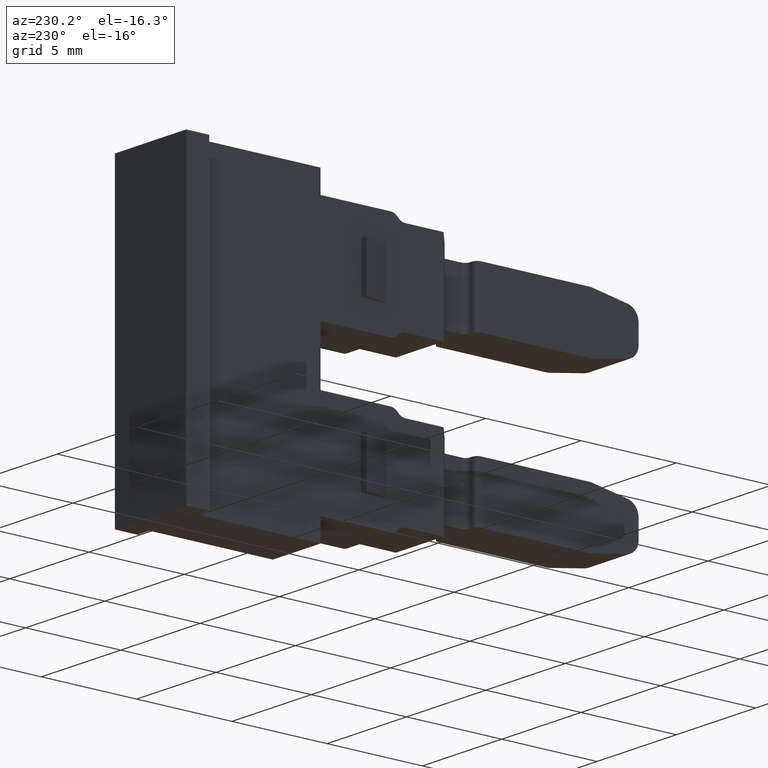
[diagram: clean part render]
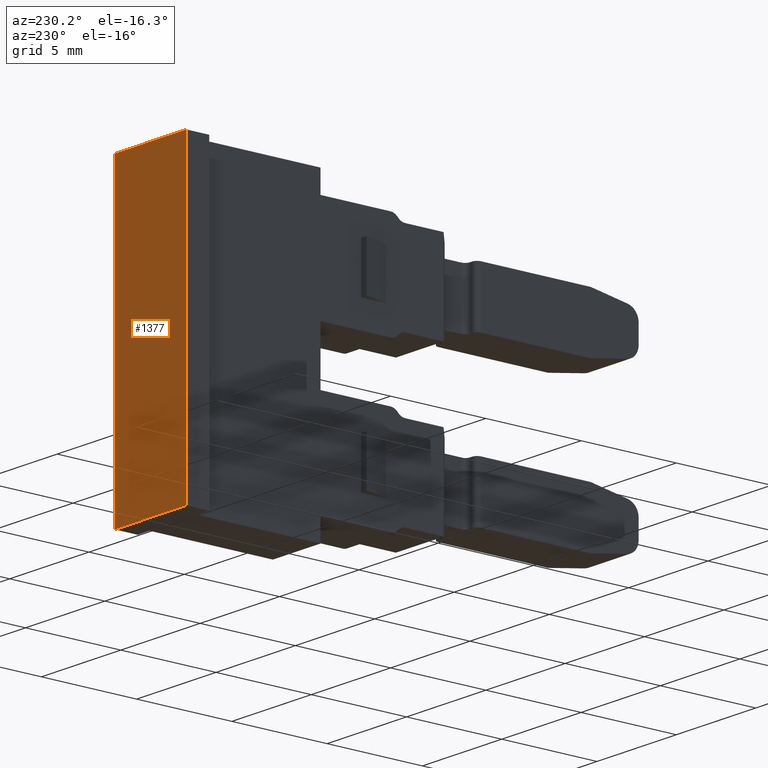
[diagram: same view with one face highlighted and labeled with its STEP entity id]
A machine part, auxiliary view. The second image highlights one B-rep face of the part: STEP entity #1377.
In plain terms, the highlighted planar face has unit normal (0, -1, -0).
Its self-contained STEP definition (entity closure, byte-faithful):
#14 = DIRECTION ( 'NONE',  ( 1.000000000000000000, -0.0000000000000000000, 7.193572994224081300E-015 ) ) ;
#15 = CARTESIAN_POINT ( 'NONE',  ( 112.2452529172785900, 260.3101602476015200, 173.0398226793859900 ) ) ;
#19 = CARTESIAN_POINT ( 'NONE',  ( 112.9952529172783200, 260.3101602476015200, 236.8398226793851200 ) ) ;
#29 = LINE ( 'NONE', #15, #1610 ) ;
#31 = LINE ( 'NONE', #19, #1612 ) ;
#46 = DIRECTION ( 'NONE',  ( 7.847720069483336500E-029, -2.968510761029624900E-015, 1.000000000000000000 ) ) ;
#95 = DIRECTION ( 'NONE',  ( -1.000000000000000000, -0.0000000000000000000, -7.193572994224081300E-015 ) ) ;
#127 = CARTESIAN_POINT ( 'NONE',  ( 112.2452529172788300, 260.3101602476016300, 157.2398226793859800 ) ) ;
#131 = LINE ( 'NONE', #127, #1661 ) ;
#709 = FACE_OUTER_BOUND ( 'NONE', #2245, .T. ) ;
#711 = DIRECTION ( 'NONE',  ( 2.643655590711540000E-014, -1.000000000000000000, -2.968510761029624900E-015 ) ) ;
#713 = DIRECTION ( 'NONE',  ( 1.000000000000000000, 2.643655590711540000E-014, 0.0000000000000000000 ) ) ;
#715 = PLANE ( 'NONE',  #1797 ) ;
#734 = CARTESIAN_POINT ( 'NONE',  ( 112.2452529172779900, 260.3101602476015200, 236.8398226793851200 ) ) ;
#913 = CARTESIAN_POINT ( 'NONE',  ( 108.4952529172783100, 260.3101602476015700, 157.2398226793859500 ) ) ;
#1000 = CARTESIAN_POINT ( 'NONE',  ( 108.4952529172782200, 260.3101602476015700, 173.0398226793859900 ) ) ;
#1005 = CARTESIAN_POINT ( 'NONE',  ( 112.9952529172782500, 260.3101602476015700, 173.0398226793859900 ) ) ;
#1021 = CARTESIAN_POINT ( 'NONE',  ( 112.9952529172783200, 260.3101602476016900, 157.2398226793859500 ) ) ;
#1115 = EDGE_CURVE ( 'NONE', #2603, #2594, #2393, .T. ) ;
#1184 = EDGE_CURVE ( 'NONE', #2640, #2620, #31, .T. ) ;
#1190 = EDGE_CURVE ( 'NONE', #2603, #2620, #29, .T. ) ;
#1215 = EDGE_CURVE ( 'NONE', #2640, #2594, #131, .T. ) ;
#1377 = ADVANCED_FACE ( 'NONE', ( #709 ), #715, .F. ) ;
#1559 = VECTOR ( 'NONE', #2356, 1000.000000000000000 ) ;
#1610 = VECTOR ( 'NONE', #14, 1000.000000000000000 ) ;
#1612 = VECTOR ( 'NONE', #46, 1000.000000000000000 ) ;
#1661 = VECTOR ( 'NONE', #95, 1000.000000000000000 ) ;
#1797 = AXIS2_PLACEMENT_3D ( 'NONE', #734, #711, #713 ) ;
#1975 = ORIENTED_EDGE ( 'NONE', *, *, #1215, .T. ) ;
#2035 = ORIENTED_EDGE ( 'NONE', *, *, #1190, .T. ) ;
#2043 = ORIENTED_EDGE ( 'NONE', *, *, #1184, .F. ) ;
#2049 = ORIENTED_EDGE ( 'NONE', *, *, #1115, .F. ) ;
#2245 = EDGE_LOOP ( 'NONE', ( #2035, #2043, #1975, #2049 ) ) ;
#2348 = CARTESIAN_POINT ( 'NONE',  ( 108.4952529172782200, 260.3101602476014000, 236.8398226793851200 ) ) ;
#2356 = DIRECTION ( 'NONE',  ( -7.847720069483336500E-029, 2.968510761029624900E-015, -1.000000000000000000 ) ) ;
#2393 = LINE ( 'NONE', #2348, #1559 ) ;
#2594 = VERTEX_POINT ( 'NONE', #913 ) ;
#2603 = VERTEX_POINT ( 'NONE', #1000 ) ;
#2620 = VERTEX_POINT ( 'NONE', #1005 ) ;
#2640 = VERTEX_POINT ( 'NONE', #1021 ) ;